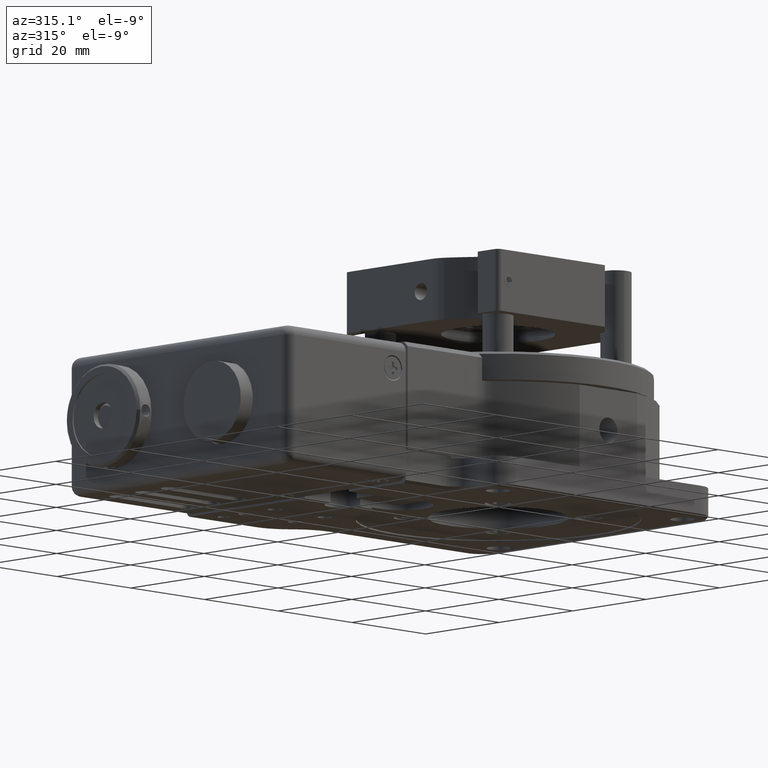
[diagram: clean part render]
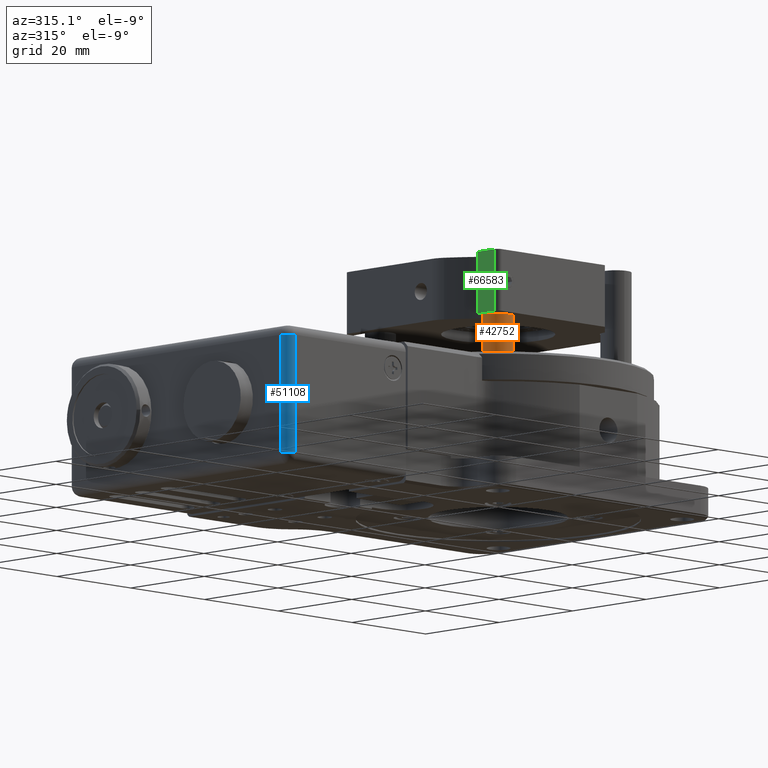
[diagram: same view with three faces highlighted in distinct colors, each labeled with its STEP entity id]
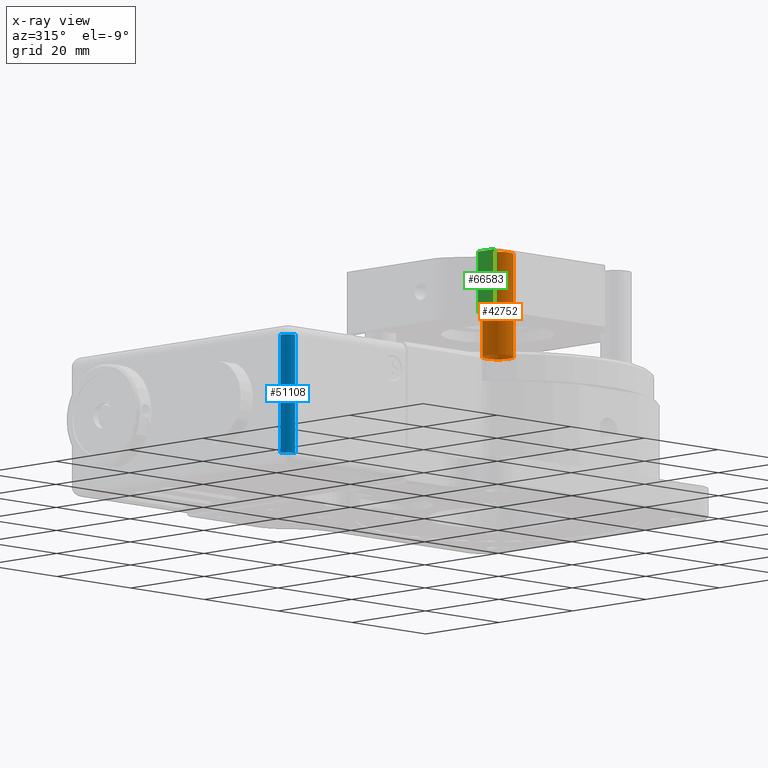
[diagram: x-ray of the same camera — body ghosted, the three highlighted faces saturated]
A machine part, auxiliary view with three faces highlighted in distinct colors.
The next image is the same camera in x-ray (body ghosted, the three faces saturated) — at least one of them is partly hidden behind the body in this view.
Their STEP definitions:

[orange] entity #42752 — the highlighted cylindrical surface (bore or boss wall) has radius 3 mm, axis along (-0, 0, -1).
#2251 = CYLINDRICAL_SURFACE ( 'NONE', #35312, 0.1181102362204724532 ) ;
#2592 = FACE_OUTER_BOUND ( 'NONE', #21713, .T. ) ;
#6199 = VERTEX_POINT ( 'NONE', #29354 ) ;
#10564 = EDGE_CURVE ( 'NONE', #6199, #6199, #40650, .T. ) ;
#11051 = ORIENTED_EDGE ( 'NONE', *, *, #64649, .F. ) ;
#12288 = VERTEX_POINT ( 'NONE', #68757 ) ;
#12991 = DIRECTION ( 'NONE',  ( 1.000000000000000000, 0.000000000000000000, 0.000000000000000000 ) ) ;
#15398 = CIRCLE ( 'NONE', #50280, 0.1181102362204724532 ) ;
#15892 = DIRECTION ( 'NONE',  ( 1.000000000000000000, 0.000000000000000000, 0.000000000000000000 ) ) ;
#18657 = AXIS2_PLACEMENT_3D ( 'NONE', #49598, #60447, #15892 ) ;
#21713 = EDGE_LOOP ( 'NONE', ( #35825 ) ) ;
#29354 = CARTESIAN_POINT ( 'NONE',  ( 0.1181102362204724532, 0.000000000000000000, 0.000000000000000000 ) ) ;
#35312 = AXIS2_PLACEMENT_3D ( 'NONE', #64126, #70619, #42062 ) ;
#35825 = ORIENTED_EDGE ( 'NONE', *, *, #10564, .F. ) ;
#40556 = CARTESIAN_POINT ( 'NONE',  ( 0.000000000000000000, 0.7874015748031496509, 0.000000000000000000 ) ) ;
#40633 = FACE_OUTER_BOUND ( 'NONE', #42739, .T. ) ;
#40650 = CIRCLE ( 'NONE', #18657, 0.1181102362204724532 ) ;
#42062 = DIRECTION ( 'NONE',  ( 1.000000000000000000, 0.000000000000000000, 0.000000000000000000 ) ) ;
#42739 = EDGE_LOOP ( 'NONE', ( #11051 ) ) ;
#42752 = ADVANCED_FACE ( 'NONE', ( #2592, #40633 ), #2251, .T. ) ;
#46012 = DIRECTION ( 'NONE',  ( 0.000000000000000000, 1.000000000000000000, 0.000000000000000000 ) ) ;
#49598 = CARTESIAN_POINT ( 'NONE',  ( 0.000000000000000000, 0.000000000000000000, 0.000000000000000000 ) ) ;
#50280 = AXIS2_PLACEMENT_3D ( 'NONE', #40556, #46012, #12991 ) ;
#60447 = DIRECTION ( 'NONE',  ( 0.000000000000000000, -1.000000000000000000, 0.000000000000000000 ) ) ;
#64126 = CARTESIAN_POINT ( 'NONE',  ( 0.000000000000000000, 0.000000000000000000, 0.000000000000000000 ) ) ;
#64649 = EDGE_CURVE ( 'NONE', #12288, #12288, #15398, .T. ) ;
#68757 = CARTESIAN_POINT ( 'NONE',  ( 0.1181102362204724532, 0.7874015748031496509, 0.000000000000000000 ) ) ;
#70619 = DIRECTION ( 'NONE',  ( 0.000000000000000000, 1.000000000000000000, 0.000000000000000000 ) ) ;

[blue] entity #51108 — the highlighted cylindrical surface (edge-blend (fillet) strip) has radius 2 mm, axis along (-0, 0, 1).
#1763 = CARTESIAN_POINT ( 'NONE',  ( -3.029446667454197328, -0.7292714869574234982, 0.9960629921259850361 ) ) ;
#1843 = CARTESIAN_POINT ( 'NONE',  ( -2.963062968023588262, -0.7874015748031495399, 0.09055118110236302920 ) ) ;
#2302 = ORIENTED_EDGE ( 'NONE', *, *, #44069, .F. ) ;
#2540 = CARTESIAN_POINT ( 'NONE',  ( -3.015721798614029669, -0.7570509228326705031, 0.09055118110236300144 ) ) ;
#4308 = CARTESIAN_POINT ( 'NONE',  ( -2.952755905511811108, -0.7874015748031496509, 0.09055118110236221041 ) ) ;
#6717 = CARTESIAN_POINT ( 'NONE',  ( -3.031496062992125928, -0.7086614173228346081, 0.9960629921259842590 ) ) ;
#7520 = CARTESIAN_POINT ( 'NONE',  ( -3.015721798614029225, -0.7570509228326706141, 0.9960629921259849251 ) ) ;
#7955 = CARTESIAN_POINT ( 'NONE',  ( -2.952755905511811108, -0.7874015748031496509, 0.09055118110236221041 ) ) ;
#8381 = CARTESIAN_POINT ( 'NONE',  ( -3.031496062992125928, -0.7086614173228347191, 0.6942257217847778161 ) ) ;
#8990 = ORIENTED_EDGE ( 'NONE', *, *, #12853, .F. ) ;
#9346 = CARTESIAN_POINT ( 'NONE',  ( -2.952755905511811108, -0.7874015748031520934, 0.6942257217847779271 ) ) ;
#9449 = CARTESIAN_POINT ( 'NONE',  ( -2.952755905511811108, -0.7874015748031496509, 0.09055118110236221041 ) ) ;
#10811 = B_SPLINE_CURVE_WITH_KNOTS ( 'NONE', 3,
 ( #13452, #42098, #8381, #58759 ),
 .UNSPECIFIED., .F., .F.,
 ( 4, 4 ),
 ( 0.000000000000000000, 1.000000000000000000 ),
 .UNSPECIFIED. ) ;
#12853 = EDGE_CURVE ( 'NONE', #15677, #56906, #10811, .T. ) ;
#13452 = CARTESIAN_POINT ( 'NONE',  ( -3.031496062992125928, -0.7086614173228346081, 0.09055118110236221041 ) ) ;
#13475 = B_SPLINE_CURVE_WITH_KNOTS ( 'NONE', 3,
 ( #14803, #9346, #31458, #4308 ),
 .UNSPECIFIED., .F., .F.,
 ( 4, 4 ),
 ( 0.000000000000000000, 1.000000000000000000 ),
 .UNSPECIFIED. ) ;
#13528 = AXIS2_PLACEMENT_3D ( 'NONE', #21021, #37701, #60177 ) ;
#13734 = CARTESIAN_POINT ( 'NONE',  ( -2.973365975146400331, -0.7853521792652216060, 0.09055118110236300144 ) ) ;
#14803 = CARTESIAN_POINT ( 'NONE',  ( -2.952755905511811108, -0.7874015748031496509, 0.9960629921259842590 ) ) ;
#14822 = VERTEX_POINT ( 'NONE', #28222 ) ;
#15677 = VERTEX_POINT ( 'NONE', #43252 ) ;
#17321 = CARTESIAN_POINT ( 'NONE',  ( -2.992410943336290874, -0.7774634951460043242, 0.9960629921259849251 ) ) ;
#17963 = B_SPLINE_CURVE_WITH_KNOTS ( 'NONE', 3,
 ( #30056, #41292, #40224, #46397, #2540, #18102, #28971, #13734, #1843, #7955 ),
 .UNSPECIFIED., .F., .F.,
 ( 4, 2, 2, 2, 4 ),
 ( 0.000000000000000000, 0.2500000000000000000, 0.5000000000000000000, 0.7500000000000000000, 1.000000000000000000 ),
 .UNSPECIFIED. ) ;
#18055 = EDGE_CURVE ( 'NONE', #15677, #25288, #17963, .T. ) ;
#18102 = CARTESIAN_POINT ( 'NONE',  ( -3.001145411021647114, -0.7716273104250536141, 0.09055118110236297368 ) ) ;
#18387 = CARTESIAN_POINT ( 'NONE',  ( -2.973365975146400331, -0.7853521792652214950, 0.9960629921259852582 ) ) ;
#21021 = CARTESIAN_POINT ( 'NONE',  ( -2.952755905511811108, -0.7086614173228346081, 0.01181102362204803150 ) ) ;
#25288 = VERTEX_POINT ( 'NONE', #9449 ) ;
#28222 = CARTESIAN_POINT ( 'NONE',  ( -2.952755905511811108, -0.7874015748031496509, 0.9960629921259842590 ) ) ;
#28971 = CARTESIAN_POINT ( 'NONE',  ( -2.992410943336291762, -0.7774634951460044352, 0.09055118110236302920 ) ) ;
#29613 = CARTESIAN_POINT ( 'NONE',  ( -2.963062968023589150, -0.7874015748031493178, 0.9960629921259848141 ) ) ;
#30056 = CARTESIAN_POINT ( 'NONE',  ( -3.031496062992125928, -0.7086614173228346081, 0.09055118110236221041 ) ) ;
#31458 = CARTESIAN_POINT ( 'NONE',  ( -2.952755905511811108, -0.7874015748031524264, 0.3923884514435704851 ) ) ;
#34714 = CARTESIAN_POINT ( 'NONE',  ( -3.031496062992125928, -0.7189684798346122063, 0.9960629921259852582 ) ) ;
#37701 = DIRECTION ( 'NONE',  ( -1.224646799147350002E-16, 2.081668171172169746E-16, 1.000000000000000000 ) ) ;
#40224 = CARTESIAN_POINT ( 'NONE',  ( -3.029446667454197328, -0.7292714869574238312, 0.09055118110236300144 ) ) ;
#41044 = ORIENTED_EDGE ( 'NONE', *, *, #51381, .T. ) ;
#41292 = CARTESIAN_POINT ( 'NONE',  ( -3.031496062992125928, -0.7189684798346126504, 0.09055118110236297368 ) ) ;
#42098 = CARTESIAN_POINT ( 'NONE',  ( -3.031496062992125928, -0.7086614173228347191, 0.3923884514435703186 ) ) ;
#43252 = CARTESIAN_POINT ( 'NONE',  ( -3.031496062992125928, -0.7086614173228346081, 0.09055118110236221041 ) ) ;
#44069 = EDGE_CURVE ( 'NONE', #14822, #25288, #13475, .T. ) ;
#45600 = CARTESIAN_POINT ( 'NONE',  ( -2.952755905511811108, -0.7874015748031496509, 0.9960629921259842590 ) ) ;
#46397 = CARTESIAN_POINT ( 'NONE',  ( -3.021557983334980602, -0.7483164551473149295, 0.09055118110236298756 ) ) ;
#51108 = ADVANCED_FACE ( 'NONE', ( #65211 ), #66266, .T. ) ;
#51381 = EDGE_CURVE ( 'NONE', #14822, #56906, #54856, .T. ) ;
#51727 = CARTESIAN_POINT ( 'NONE',  ( -3.021557983334980602, -0.7483164551473148185, 0.9960629921259852582 ) ) ;
#52452 = EDGE_LOOP ( 'NONE', ( #66892, #2302, #41044, #8990 ) ) ;
#54856 = B_SPLINE_CURVE_WITH_KNOTS ( 'NONE', 3,
 ( #45600, #29613, #18387, #17321, #67621, #7520, #51727, #1763, #34714, #61869 ),
 .UNSPECIFIED., .F., .F.,
 ( 4, 2, 2, 2, 4 ),
 ( 0.000000000000000000, 0.2500000000000000000, 0.5000000000000000000, 0.7500000000000000000, 1.000000000000000000 ),
 .UNSPECIFIED. ) ;
#56906 = VERTEX_POINT ( 'NONE', #6717 ) ;
#58759 = CARTESIAN_POINT ( 'NONE',  ( -3.031496062992125928, -0.7086614173228346081, 0.9960629921259842590 ) ) ;
#60177 = DIRECTION ( 'NONE',  ( -0.7071067811865457964, -0.7071067811865492381, 5.421010862427528333E-17 ) ) ;
#61869 = CARTESIAN_POINT ( 'NONE',  ( -3.031496062992125928, -0.7086614173228346081, 0.9960629921259842590 ) ) ;
#65211 = FACE_OUTER_BOUND ( 'NONE', #52452, .T. ) ;
#66266 = CYLINDRICAL_SURFACE ( 'NONE', #13528, 0.07874015748031487627 ) ;
#66892 = ORIENTED_EDGE ( 'NONE', *, *, #18055, .T. ) ;
#67621 = CARTESIAN_POINT ( 'NONE',  ( -3.001145411021646670, -0.7716273104250535031, 0.9960629921259852582 ) ) ;

[green] entity #66583 — the highlighted planar face has unit normal (-1, -0, 0).
#1086 = LINE ( 'NONE', #51402, #32826 ) ;
#3394 = ORIENTED_EDGE ( 'NONE', *, *, #60547, .F. ) ;
#8741 = PLANE ( 'NONE',  #30270 ) ;
#9452 = DIRECTION ( 'NONE',  ( -3.172065784643300034E-16, 1.000000000000000000, 0.000000000000000000 ) ) ;
#9952 = EDGE_CURVE ( 'NONE', #16964, #54975, #48623, .T. ) ;
#11989 = LINE ( 'NONE', #68095, #14702 ) ;
#14702 = VECTOR ( 'NONE', #67384, 39.37007874015748143 ) ;
#15993 = VERTEX_POINT ( 'NONE', #31168 ) ;
#16964 = VERTEX_POINT ( 'NONE', #68127 ) ;
#17422 = ORIENTED_EDGE ( 'NONE', *, *, #9952, .F. ) ;
#22907 = EDGE_LOOP ( 'NONE', ( #3394, #51342, #46220, #17422 ) ) ;
#23121 = DIRECTION ( 'NONE',  ( 0.000000000000000000, 0.000000000000000000, -1.000000000000000000 ) ) ;
#26100 = DIRECTION ( 'NONE',  ( -1.000000000000000000, -3.172065784643300034E-16, 0.000000000000000000 ) ) ;
#29038 = VECTOR ( 'NONE', #69223, 39.37007874015748143 ) ;
#30270 = AXIS2_PLACEMENT_3D ( 'NONE', #59125, #26100, #9452 ) ;
#31168 = CARTESIAN_POINT ( 'NONE',  ( -0.8267716535433071723, -0.6102362204724409711, 0.4724409448818898127 ) ) ;
#31209 = VERTEX_POINT ( 'NONE', #43158 ) ;
#32823 = CARTESIAN_POINT ( 'NONE',  ( -0.8267716535433071723, -0.6102362204724409711, 0.000000000000000000 ) ) ;
#32826 = VECTOR ( 'NONE', #23121, 39.37007874015748143 ) ;
#33426 = CARTESIAN_POINT ( 'NONE',  ( -0.8267716535433071723, -0.8267716535433071723, 0.4724409448818898127 ) ) ;
#34655 = VECTOR ( 'NONE', #71449, 39.37007874015748143 ) ;
#40442 = EDGE_CURVE ( 'NONE', #15993, #31209, #65653, .T. ) ;
#43158 = CARTESIAN_POINT ( 'NONE',  ( -0.8267716535433071723, -0.7874015748031496509, 0.4724409448818898127 ) ) ;
#46220 = ORIENTED_EDGE ( 'NONE', *, *, #48995, .T. ) ;
#47914 = CARTESIAN_POINT ( 'NONE',  ( -0.8267716535433071723, -0.8267716535433071723, 0.000000000000000000 ) ) ;
#48623 = LINE ( 'NONE', #47914, #29038 ) ;
#48995 = EDGE_CURVE ( 'NONE', #15993, #54975, #11989, .T. ) ;
#51342 = ORIENTED_EDGE ( 'NONE', *, *, #40442, .F. ) ;
#51402 = CARTESIAN_POINT ( 'NONE',  ( -0.8267716535433071723, -0.7874015748031496509, 0.000000000000000000 ) ) ;
#54975 = VERTEX_POINT ( 'NONE', #32823 ) ;
#59125 = CARTESIAN_POINT ( 'NONE',  ( -0.8267716535433071723, 0.8267716535433071723, 0.000000000000000000 ) ) ;
#60547 = EDGE_CURVE ( 'NONE', #31209, #16964, #1086, .T. ) ;
#65653 = LINE ( 'NONE', #33426, #34655 ) ;
#66583 = ADVANCED_FACE ( 'NONE', ( #69586 ), #8741, .T. ) ;
#67384 = DIRECTION ( 'NONE',  ( 0.000000000000000000, 0.000000000000000000, -1.000000000000000000 ) ) ;
#68095 = CARTESIAN_POINT ( 'NONE',  ( -0.8267716535433071723, -0.6102362204724409711, 0.2362204724409449064 ) ) ;
#68127 = CARTESIAN_POINT ( 'NONE',  ( -0.8267716535433071723, -0.7874015748031496509, 0.000000000000000000 ) ) ;
#69223 = DIRECTION ( 'NONE',  ( -3.172065784643300034E-16, 1.000000000000000000, 0.000000000000000000 ) ) ;
#69586 = FACE_OUTER_BOUND ( 'NONE', #22907, .T. ) ;
#71449 = DIRECTION ( 'NONE',  ( 3.172065784643300034E-16, -1.000000000000000000, 0.000000000000000000 ) ) ;